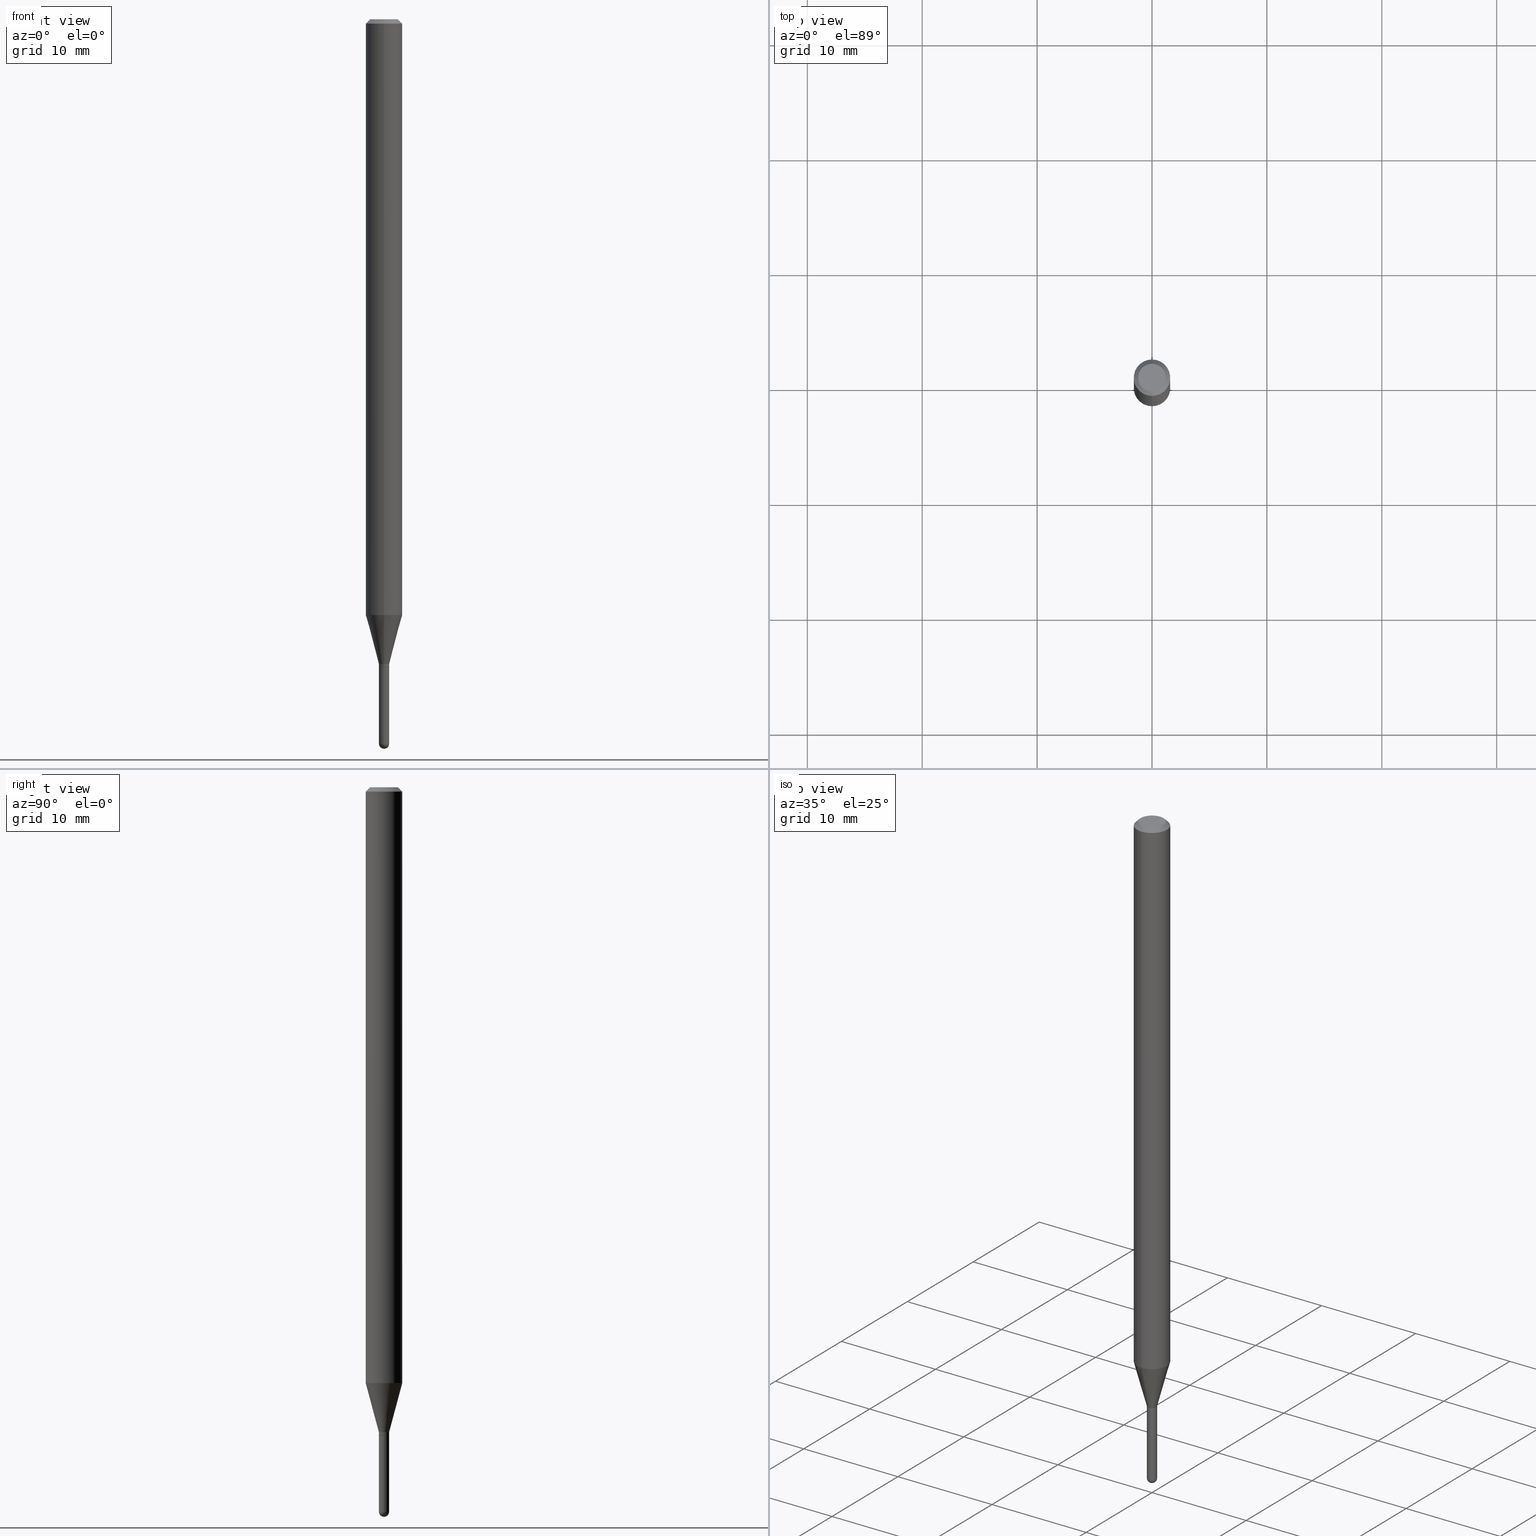
[diagram: canonical four-view strip — front | top / right | iso, engineering-drawing reading convention]
A machine part, canonical four-view strip (front | top / right | iso — engineering-drawing reading convention). The complete STEP part file that produces these views, byte-faithful:
ISO-10303-21;
HEADER;
FILE_DESCRIPTION (( 'STEP AP203' ),
    '1' );
FILE_NAME ('00985.STEP',
    '2024-03-07T19:28:57',
    ( '' ),
    ( '' ),
    'SwSTEP 2.0',
    'SolidWorks 2023',
    '' );
FILE_SCHEMA (( 'CONFIG_CONTROL_DESIGN' ));
ENDSEC;

DATA;
#1 = ORIENTED_EDGE ( 'NONE', *, *, #281, .F. ) ;
#2 = APPROVAL_STATUS ( 'not_yet_approved' ) ;
#3 = AXIS2_PLACEMENT_3D ( 'NONE', #304, #434, #427 ) ;
#4 = VECTOR ( 'NONE', #88, 39.37007874015748143 ) ;
#5 = PRODUCT_DEFINITION ( 'UNKNOWN', '', #166, #21 ) ;
#6 = APPROVAL_DATE_TIME ( #408, #203 ) ;
#7 = FACE_OUTER_BOUND ( 'NONE', #449, .T. ) ;
#8 = FACE_OUTER_BOUND ( 'NONE', #151, .T. ) ;
#9 = DIRECTION ( 'NONE',  ( -2.445449650691490945E-29, 3.491508770600309378E-15, 1.000000000000000000 ) ) ;
#10 = CC_DESIGN_PERSON_AND_ORGANIZATION_ASSIGNMENT ( #354, #500, ( #438 ) ) ;
#11 = AXIS2_PLACEMENT_3D ( 'NONE', #375, #376, #377 ) ;
#12 = APPROVAL_PERSON_ORGANIZATION ( #407, #203, #163 ) ;
#13 = DIRECTION ( 'NONE',  ( -2.445449650691490945E-29, 3.491508770600309378E-15, 1.000000000000000000 ) ) ;
#14 = LINE ( 'NONE', #418, #345 ) ;
#15 = EDGE_LOOP ( 'NONE', ( #99, #358, #188, #235 ) ) ;
#16 = EDGE_CURVE ( 'NONE', #161, #184, #498, .T. ) ;
#17 = DIRECTION ( 'NONE',  ( -2.445449650691490945E-29, 3.491508770600309378E-15, 1.000000000000000000 ) ) ;
#18 = FACE_OUTER_BOUND ( 'NONE', #15, .T. ) ;
#19 = CONICAL_SURFACE ( 'NONE', #337, 0.06250000000000000000, 0.7853981633974483900 ) ;
#20 = CIRCLE ( 'NONE', #238, 0.06250000000000000000 ) ;
#21 = DESIGN_CONTEXT ( 'detailed design', #168, 'design' ) ;
#22 = DIRECTION ( 'NONE',  ( -2.445449650691490945E-29, 3.491508770600309378E-15, 1.000000000000000000 ) ) ;
#23 = DIRECTION ( 'NONE',  ( 2.445449650691490665E-29, -3.491508770600308983E-15, -1.000000000000000000 ) ) ;
#24 = DIRECTION ( 'NONE',  ( -6.982962677686265922E-15, -1.000000000000000000, 3.491508770600309378E-15 ) ) ;
#25 = ORIENTED_EDGE ( 'NONE', *, *, #281, .T. ) ;
#26 = DIRECTION ( 'NONE',  ( 1.000000000000000000, -6.982962677686303787E-15, 0.000000000000000000 ) ) ;
#27 = CYLINDRICAL_SURFACE ( 'NONE', #93, 0.01749999999999965125 ) ;
#28 = VERTEX_POINT ( 'NONE', #309 ) ;
#29 = ORIENTED_EDGE ( 'NONE', *, *, #136, .F. ) ;
#30 = CC_DESIGN_SECURITY_CLASSIFICATION ( #173, ( #166 ) ) ;
#31 = DIRECTION ( 'NONE',  ( -6.982962677686265922E-15, -1.000000000000000000, 3.491508770600308983E-15 ) ) ;
#32 = APPROVAL_DATE_TIME ( #270, #67 ) ;
#33 = DIRECTION ( 'NONE',  ( -6.982962677686265922E-15, -1.000000000000000000, 0.000000000000000000 ) ) ;
#34 =( CONVERSION_BASED_UNIT ( 'INCH', #340 ) LENGTH_UNIT ( ) NAMED_UNIT ( #369 ) );
#35 = ORIENTED_EDGE ( 'NONE', *, *, #512, .T. ) ;
#36 = ADVANCED_FACE ( 'NONE', ( #431 ), #388, .F. ) ;
#37 = APPROVAL_STATUS ( 'not_yet_approved' ) ;
#38 = DIRECTION ( 'NONE',  ( -2.445449650691490945E-29, 3.491508770600309378E-15, 1.000000000000000000 ) ) ;
#39 = DIRECTION ( 'NONE',  ( -2.445449650691490945E-29, 3.491508770600309378E-15, 1.000000000000000000 ) ) ;
#40 = DIRECTION ( 'NONE',  ( -2.445449650691490945E-29, 3.491508770600309378E-15, 1.000000000000000000 ) ) ;
#41 = AXIS2_PLACEMENT_3D ( 'NONE', #275, #278, #26 ) ;
#42 = AXIS2_PLACEMENT_3D ( 'NONE', #348, #489, #148 ) ;
#43 = CONICAL_SURFACE ( 'NONE', #103, 0.01700000000000000122, 0.7853981633974739252 ) ;
#44 = ADVANCED_BREP_SHAPE_REPRESENTATION ( '00985', ( #327, #484, #81 ), #126 ) ;
#45 = ORIENTED_EDGE ( 'NONE', *, *, #294, .F. ) ;
#46 = PRODUCT_DEFINITION_SHAPE ( 'NONE', 'NONE',  #5 ) ;
#47 = FACE_OUTER_BOUND ( 'NONE', #453, .T. ) ;
#48 = DIRECTION ( 'NONE',  ( -6.982962677686265922E-15, -1.000000000000000000, 3.483106191921935554E-15 ) ) ;
#49 = CARTESIAN_POINT ( 'NONE',  ( 6.070876311354603530E-29, -8.667602423678111529E-15, -2.482500000000000817 ) ) ;
#50 = ADVANCED_FACE ( 'NONE', ( #456 ), #141, .F. ) ;
#51 = DIRECTION ( 'NONE',  ( -6.982962677686265133E-15, -1.000000000000000000, 0.000000000000000000 ) ) ;
#52 = DIRECTION ( 'NONE',  ( -6.982962677686266711E-15, -1.000000000000000000, 3.491508770600309772E-15 ) ) ;
#53 = VECTOR ( 'NONE', #425, 39.37007874015748143 ) ;
#54 = LOCAL_TIME ( 14, 28, 57.00000000000000000, #398 ) ;
#55 = CARTESIAN_POINT ( 'NONE',  ( 0.01750000000000000167, -1.222018468595096625E-16, 8.533309357642889039E-31 ) ) ;
#56 = ADVANCED_FACE ( 'NONE', ( #18 ), #177, .T. ) ;
#57 = DIRECTION ( 'NONE',  ( 1.000000000000000000, -6.982962677686248567E-15, 0.000000000000000000 ) ) ;
#58 = ORIENTED_EDGE ( 'NONE', *, *, #455, .T. ) ;
#59 = ORIENTED_EDGE ( 'NONE', *, *, #385, .T. ) ;
#60 = DIRECTION ( 'NONE',  ( -2.445449650691490945E-29, 3.491508770600309378E-15, 1.000000000000000000 ) ) ;
#61 = CIRCLE ( 'NONE', #180, 0.01700000000000000122 ) ;
#62 = ORIENTED_EDGE ( 'NONE', *, *, #280, .F. ) ;
#63 = CC_DESIGN_APPROVAL ( #67, ( #173 ) ) ;
#64 = CARTESIAN_POINT ( 'NONE',  ( 3.668174476037238870E-31, -5.237263155900467617E-17, -0.01500000000000000812 ) ) ;
#65 = FACE_OUTER_BOUND ( 'NONE', #197, .T. ) ;
#66 = CARTESIAN_POINT ( 'NONE',  ( 2.166427900926208245E-46, -3.093133409971536781E-32, -8.859016583365825955E-18 ) ) ;
#67 = APPROVAL ( #37, 'UNSPECIFIED' ) ;
#68 = DIRECTION ( 'NONE',  ( 2.445449650691490945E-29, -3.491508770600309378E-15, -1.000000000000000000 ) ) ;
#69 = FACE_OUTER_BOUND ( 'NONE', #391, .T. ) ;
#70 = VERTEX_POINT ( 'NONE', #264 ) ;
#71 = CARTESIAN_POINT ( 'NONE',  ( 4.993749322560243960E-29, -7.129862417313810105E-15, -2.042057713659399809 ) ) ;
#72 = PERSON_AND_ORGANIZATION ( #402, #146 ) ;
#73 = ORIENTED_EDGE ( 'NONE', *, *, #120, .T. ) ;
#74 = ADVANCED_FACE ( 'NONE', ( #193 ), #19, .T. ) ;
#75 = AXIS2_PLACEMENT_3D ( 'NONE', #210, #195, #251 ) ;
#76 = EDGE_CURVE ( 'NONE', #499, #333, #172, .T. ) ;
#77 = ORIENTED_EDGE ( 'NONE', *, *, #512, .F. ) ;
#78 = CARTESIAN_POINT ( 'NONE',  ( -1.243449787579568760E-16, -0.01750000000000867528, -2.482500000000000817 ) ) ;
#79 = CARTESIAN_POINT ( 'NONE',  ( -3.773273898774340269E-16, -0.04749999999999999362, 1.569876500201488802E-16 ) ) ;
#80 = VERTEX_POINT ( 'NONE', #419 ) ;
#81 = AXIS2_PLACEMENT_3D ( 'NONE', #233, #364, #135 ) ;
#82 = EDGE_CURVE ( 'NONE', #273, #145, #479, .T. ) ;
#83 = COORDINATED_UNIVERSAL_TIME_OFFSET ( 5, 0, .BEHIND. ) ;
#84 = UNCERTAINTY_MEASURE_WITH_UNIT (LENGTH_MEASURE( 1.000000000000000082E-05 ), #34, 'distance_accuracy_value', 'NONE');
#85 = ADVANCED_FACE ( 'NONE', ( #65 ), #469, .T. ) ;
#86 = VECTOR ( 'NONE', #301, 39.37007874015748143 ) ;
#87 = AXIS2_PLACEMENT_3D ( 'NONE', #106, #389, #24 ) ;
#88 = DIRECTION ( 'NONE',  ( -2.445468806185136877E-29, 3.491481338843145188E-15, 1.000000000000000000 ) ) ;
#89 =( LENGTH_UNIT ( ) NAMED_UNIT ( * ) SI_UNIT ( $, .METRE. ) );
#90 = EDGE_LOOP ( 'NONE', ( #96, #58, #478, #308 ) ) ;
#91 = EDGE_CURVE ( 'NONE', #315, #70, #158, .T. ) ;
#92 = LINE ( 'NONE', #215, #159 ) ;
#93 = AXIS2_PLACEMENT_3D ( 'NONE', #497, #40, #361 ) ;
#94 = DIRECTION ( 'NONE',  ( -6.982962677686265922E-15, -1.000000000000000000, 0.000000000000000000 ) ) ;
#95 = DIRECTION ( 'NONE',  ( -2.445468806185136597E-29, 3.491481338843145583E-15, 1.000000000000000000 ) ) ;
#96 = ORIENTED_EDGE ( 'NONE', *, *, #91, .T. ) ;
#97 = ORIENTED_EDGE ( 'NONE', *, *, #248, .F. ) ;
#98 = DIRECTION ( 'NONE',  ( 6.982962677686265922E-15, 1.000000000000000000, 0.000000000000000000 ) ) ;
#99 = ORIENTED_EDGE ( 'NONE', *, *, #167, .F. ) ;
#100 = FACE_OUTER_BOUND ( 'NONE', #117, .T. ) ;
#101 = CLOSED_SHELL ( 'NONE', ( #262, #335, #360, #392, #429, #219, #290, #74, #36, #111, #410, #445 ) ) ;
#102 = DIRECTION ( 'NONE',  ( 1.839019923739599921E-15, 0.2588190451025249028, 0.9659258262890670910 ) ) ;
#103 = AXIS2_PLACEMENT_3D ( 'NONE', #365, #404, #254 ) ;
#104 = CALENDAR_DATE ( 2024, 7, 3 ) ;
#105 = CALENDAR_DATE ( 2024, 7, 3 ) ;
#106 = CARTESIAN_POINT ( 'NONE',  ( 0.000000000000000000, 0.000000000000000000, 0.000000000000000000 ) ) ;
#107 = EDGE_LOOP ( 'NONE', ( #25, #256 ) ) ;
#108 = FACE_OUTER_BOUND ( 'NONE', #90, .T. ) ;
#109 = DIRECTION ( 'NONE',  ( 2.438088387897960049E-29, -3.491481338843145188E-15, -1.000000000000000000 ) ) ;
#110 = CARTESIAN_POINT ( 'NONE',  ( 5.404443728028195647E-29, -7.716234383026684518E-15, -2.210000000000000409 ) ) ;
#111 = ADVANCED_FACE ( 'NONE', ( #100 ), #230, .F. ) ;
#112 = VERTEX_POINT ( 'NONE', #223 ) ;
#113 = CONICAL_SURFACE ( 'NONE', #178, 0.01749999999999965125, 0.2617993877991502405 ) ;
#114 = ORIENTED_EDGE ( 'NONE', *, *, #206, .T. ) ;
#115 = AXIS2_PLACEMENT_3D ( 'NONE', #390, #464, #283 ) ;
#116 = LINE ( 'NONE', #474, #459 ) ;
#117 = EDGE_LOOP ( 'NONE', ( #386, #379 ) ) ;
#118 = COORDINATED_UNIVERSAL_TIME_OFFSET ( 5, 0, .BEHIND. ) ;
#119 = AXIS2_PLACEMENT_3D ( 'NONE', #357, #401, #33 ) ;
#120 = EDGE_CURVE ( 'NONE', #112, #80, #483, .T. ) ;
#121 = LINE ( 'NONE', #55, #4 ) ;
#122 = CC_DESIGN_PERSON_AND_ORGANIZATION_ASSIGNMENT ( #475, #201, ( #5 ) ) ;
#123 = CARTESIAN_POINT ( 'NONE',  ( 2.166427900926208245E-46, -3.093133409971536781E-32, -8.859016583365825955E-18 ) ) ;
#124 = VECTOR ( 'NONE', #152, 39.37007874015748143 ) ;
#125 = ORIENTED_EDGE ( 'NONE', *, *, #409, .F. ) ;
#126 =( GEOMETRIC_REPRESENTATION_CONTEXT ( 3 ) GLOBAL_UNCERTAINTY_ASSIGNED_CONTEXT ( ( #84 ) ) GLOBAL_UNIT_ASSIGNED_CONTEXT ( ( #34, #199, #400 ) ) REPRESENTATION_CONTEXT ( 'NONE', 'WORKASPACE' ) );
#127 = LOCAL_TIME ( 14, 28, 57.00000000000000000, #83 ) ;
#128 = DIRECTION ( 'NONE',  ( 1.000000000000000000, -6.982962677686303787E-15, 0.000000000000000000 ) ) ;
#129 = ORIENTED_EDGE ( 'NONE', *, *, #316, .F. ) ;
#130 = CYLINDRICAL_SURFACE ( 'NONE', #11, 0.01750000000000000167 ) ;
#131 = CIRCLE ( 'NONE', #143, 0.01750000000000001207 ) ;
#132 = LOCAL_TIME ( 14, 28, 57.00000000000000000, #305 ) ;
#133 = ORIENTED_EDGE ( 'NONE', *, *, #82, .T. ) ;
#134 = ORIENTED_EDGE ( 'NONE', *, *, #507, .F. ) ;
#135 = DIRECTION ( 'NONE',  ( 1.000000000000000000, 0.000000000000000000, 0.000000000000000000 ) ) ;
#136 = EDGE_CURVE ( 'NONE', #318, #112, #265, .T. ) ;
#137 = CARTESIAN_POINT ( 'NONE',  ( 0.01750000000000000513, -8.331547344814455920E-15, -2.482500000000000817 ) ) ;
#138 = DIRECTION ( 'NONE',  ( 6.982962677686265922E-15, 1.000000000000000000, 0.000000000000000000 ) ) ;
#139 = ORIENTED_EDGE ( 'NONE', *, *, #485, .T. ) ;
#140 = APPROVAL_ROLE ( '' ) ;
#141 = PLANE ( 'NONE',  #415 ) ;
#142 = PERSON_AND_ORGANIZATION ( #402, #146 ) ;
#143 = AXIS2_PLACEMENT_3D ( 'NONE', #155, #458, #157 ) ;
#144 = CARTESIAN_POINT ( 'NONE',  ( 6.070876311354603530E-29, -8.667602423678111529E-15, -2.482500000000000817 ) ) ;
#145 = VERTEX_POINT ( 'NONE', #137 ) ;
#146 = ORGANIZATION ( 'UNSPECIFIED', 'UNSPECIFIED', '' ) ;
#147 = ORIENTED_EDGE ( 'NONE', *, *, #454, .T. ) ;
#148 = DIRECTION ( 'NONE',  ( 1.000000000000000000, -6.982962677686248567E-15, 0.000000000000000000 ) ) ;
#149 = EDGE_CURVE ( 'NONE', #237, #80, #393, .T. ) ;
#150 = CARTESIAN_POINT ( 'NONE',  ( -1.187103655206122486E-16, -0.01700000000000775197, -2.219999999999999751 ) ) ;
#151 = EDGE_LOOP ( 'NONE', ( #331, #347, #440, #295 ) ) ;
#152 = DIRECTION ( 'NONE',  ( 4.937700262164548042E-15, 0.7071067811865451302, -0.7071067811865499042 ) ) ;
#153 = CYLINDRICAL_SURFACE ( 'NONE', #87, 0.06250000000000000000 ) ;
#154 = ORIENTED_EDGE ( 'NONE', *, *, #181, .T. ) ;
#155 = CARTESIAN_POINT ( 'NONE',  ( 6.069379770348537778E-29, -8.669745555576616428E-15, -2.482499999999999929 ) ) ;
#156 = CARTESIAN_POINT ( 'NONE',  ( 2.842170943040908632E-16, 0.01749999999999193520, -2.210000000000000409 ) ) ;
#157 = DIRECTION ( 'NONE',  ( -7.105427357601000281E-15, -1.000000000000000000, 0.000000000000000000 ) ) ;
#158 = CIRCLE ( 'NONE', #322, 0.06250000000000000000 ) ;
#159 = VECTOR ( 'NONE', #446, 39.37007874015748143 ) ;
#160 = SPHERICAL_SURFACE ( 'NONE', #416, 0.01750000000000001207 ) ;
#161 = VERTEX_POINT ( 'NONE', #313 ) ;
#162 = DIRECTION ( 'NONE',  ( -2.445449650691490665E-29, 3.491508770600308983E-15, 1.000000000000000000 ) ) ;
#163 = APPROVAL_ROLE ( '' ) ;
#164 = AXIS2_PLACEMENT_3D ( 'NONE', #297, #23, #465 ) ;
#165 = CONICAL_SURFACE ( 'NONE', #451, 0.01749999999999965125, 0.2617993877991502405 ) ;
#166 = PRODUCT_DEFINITION_FORMATION_WITH_SPECIFIED_SOURCE ( 'ANY', '', #438, .NOT_KNOWN. ) ;
#167 = EDGE_CURVE ( 'NONE', #353, #273, #131, .T. ) ;
#168 = APPLICATION_CONTEXT ( 'configuration controlled 3d designs of mechanical parts and assemblies' ) ;
#169 = VERTEX_POINT ( 'NONE', #323 ) ;
#170 = DIRECTION ( 'NONE',  ( -6.982962677686265922E-15, -1.000000000000000000, 0.000000000000000000 ) ) ;
#171 = CYLINDRICAL_SURFACE ( 'NONE', #383, 0.01749999999999965125 ) ;
#172 = CIRCLE ( 'NONE', #41, 0.01750000000000000167 ) ;
#173 = SECURITY_CLASSIFICATION ( '', '', #472 ) ;
#174 = ORIENTED_EDGE ( 'NONE', *, *, #136, .T. ) ;
#175 = DIRECTION ( 'NONE',  ( -2.445449650691490665E-29, 3.491508770600308983E-15, 1.000000000000000000 ) ) ;
#176 = ORIENTED_EDGE ( 'NONE', *, *, #221, .T. ) ;
#177 = SPHERICAL_SURFACE ( 'NONE', #344, 0.01750000000000001207 ) ;
#178 = AXIS2_PLACEMENT_3D ( 'NONE', #110, #38, #363 ) ;
#179 = EDGE_CURVE ( 'NONE', #406, #315, #198, .T. ) ;
#180 = AXIS2_PLACEMENT_3D ( 'NONE', #378, #9, #170 ) ;
#181 = EDGE_CURVE ( 'NONE', #333, #273, #253, .T. ) ;
#182 = ORIENTED_EDGE ( 'NONE', *, *, #486, .T. ) ;
#183 = CARTESIAN_POINT ( 'NONE',  ( 1.222018468595639460E-16, 0.01749999999999225092, -2.220000000000000195 ) ) ;
#184 = VERTEX_POINT ( 'NONE', #399 ) ;
#185 = EDGE_LOOP ( 'NONE', ( #62, #154, #133, #147, #350 ) ) ;
#186 = CARTESIAN_POINT ( 'NONE',  ( 5.427675499709764218E-29, -7.749403716347388017E-15, -2.219500000000000028 ) ) ;
#187 = DIRECTION ( 'NONE',  ( 1.000000000000000000, -6.982962677686303787E-15, 0.000000000000000000 ) ) ;
#188 = ORIENTED_EDGE ( 'NONE', *, *, #468, .F. ) ;
#189 = DIRECTION ( 'NONE',  ( -2.445449650691490945E-29, 3.491508770600309378E-15, 1.000000000000000000 ) ) ;
#190 = CARTESIAN_POINT ( 'NONE',  ( 5.428898224535108693E-29, -7.751149470732685959E-15, -2.219999999999999751 ) ) ;
#191 = CONICAL_SURFACE ( 'NONE', #339, 0.01700000000000000122, 0.7853981633974739252 ) ;
#192 = APPROVAL_PERSON_ORGANIZATION ( #142, #67, #194 ) ;
#193 = FACE_OUTER_BOUND ( 'NONE', #448, .T. ) ;
#194 = APPROVAL_ROLE ( '' ) ;
#195 = DIRECTION ( 'NONE',  ( -2.445449650691490945E-29, 3.491508770600309378E-15, 1.000000000000000000 ) ) ;
#196 = DIRECTION ( 'NONE',  ( 1.000000000000000000, -6.982962677686265922E-15, 4.883557194083112340E-29 ) ) ;
#197 = EDGE_LOOP ( 'NONE', ( #302, #218, #490, #205, #395 ) ) ;
#198 = LINE ( 'NONE', #236, #422 ) ;
#199 =( NAMED_UNIT ( * ) PLANE_ANGLE_UNIT ( ) SI_UNIT ( $, .RADIAN. ) );
#200 = DATE_TIME_ROLE ( 'classification_date' ) ;
#201 = PERSON_AND_ORGANIZATION_ROLE ( 'creator' ) ;
#202 = VECTOR ( 'NONE', #162, 39.37007874015748143 ) ;
#203 = APPROVAL ( #2, 'UNSPECIFIED' ) ;
#204 = CARTESIAN_POINT ( 'NONE',  ( 0.000000000000000000, 0.000000000000000000, 0.000000000000000000 ) ) ;
#205 = ORIENTED_EDGE ( 'NONE', *, *, #454, .F. ) ;
#206 = EDGE_CURVE ( 'NONE', #381, #70, #116, .T. ) ;
#207 = DIRECTION ( 'NONE',  ( -2.445449650691490945E-29, 3.491508770600309378E-15, 1.000000000000000000 ) ) ;
#208 = VECTOR ( 'NONE', #226, 39.37007874015748143 ) ;
#209 = CIRCLE ( 'NONE', #411, 0.01750000000000000167 ) ;
#210 = CARTESIAN_POINT ( 'NONE',  ( 5.404443728028195647E-29, -7.716234383026684518E-15, -2.210000000000000409 ) ) ;
#211 = DIRECTION ( 'NONE',  ( -2.445468806185136597E-29, 3.491481338843145583E-15, 1.000000000000000000 ) ) ;
#212 = CARTESIAN_POINT ( 'NONE',  ( 5.427675499709764218E-29, -7.749403716347388017E-15, -2.219500000000000028 ) ) ;
#213 = AXIS2_PLACEMENT_3D ( 'NONE', #349, #196, #138 ) ;
#214 = LOCAL_TIME ( 14, 28, 57.00000000000000000, #303 ) ;
#215 = CARTESIAN_POINT ( 'NONE',  ( 4.440892098500625669E-16, 0.06250000000000000000, -2.182192981625193361E-16 ) ) ;
#216 = CARTESIAN_POINT ( 'NONE',  ( 6.112923744959810298E-29, -8.729774913057118970E-15, -2.500000000000000000 ) ) ;
#217 = CARTESIAN_POINT ( 'NONE',  ( 0.000000000000000000, 0.000000000000000000, 0.000000000000000000 ) ) ;
#218 = ORIENTED_EDGE ( 'NONE', *, *, #280, .T. ) ;
#219 = ADVANCED_FACE ( 'NONE', ( #69 ), #113, .T. ) ;
#220 = DIRECTION ( 'NONE',  ( -1.000000000000000000, 6.982962677686265922E-15, -4.883557194083112901E-29 ) ) ;
#221 = EDGE_CURVE ( 'NONE', #169, #28, #276, .T. ) ;
#222 = VERTEX_POINT ( 'NONE', #396 ) ;
#223 = CARTESIAN_POINT ( 'NONE',  ( -4.364351673553912750E-16, -0.06250000000000005551, -0.01499999999999979128 ) ) ;
#224 = CIRCLE ( 'NONE', #509, 0.04749999999999999362 ) ;
#225 = EDGE_LOOP ( 'NONE', ( #139, #430 ) ) ;
#226 = DIRECTION ( 'NONE',  ( -4.851104656540964275E-15, -0.7071067811865500152, -0.7071067811865450192 ) ) ;
#227 = FACE_OUTER_BOUND ( 'NONE', #263, .T. ) ;
#228 = ORIENTED_EDGE ( 'NONE', *, *, #477, .T. ) ;
#229 = APPROVAL_DATE_TIME ( #268, #435 ) ;
#230 = PLANE ( 'NONE',  #366 ) ;
#231 = ORIENTED_EDGE ( 'NONE', *, *, #455, .F. ) ;
#232 = EDGE_LOOP ( 'NONE', ( #35, #424, #97, #129 ) ) ;
#233 = CARTESIAN_POINT ( 'NONE',  ( 0.000000000000000000, 0.000000000000000000, 0.000000000000000000 ) ) ;
#234 = LINE ( 'NONE', #351, #338 ) ;
#235 = ORIENTED_EDGE ( 'NONE', *, *, #82, .F. ) ;
#236 = CARTESIAN_POINT ( 'NONE',  ( -1.222018468594531603E-16, -0.01750000000000736730, -2.210000000000000409 ) ) ;
#237 = VERTEX_POINT ( 'NONE', #307 ) ;
#238 = AXIS2_PLACEMENT_3D ( 'NONE', #329, #39, #48 ) ;
#239 = DIRECTION ( 'NONE',  ( -6.982962677686265922E-15, -1.000000000000000000, 0.000000000000000000 ) ) ;
#240 = DIRECTION ( 'NONE',  ( -2.445468806185136597E-29, 3.491481338843145583E-15, 1.000000000000000000 ) ) ;
#241 = EDGE_CURVE ( 'NONE', #353, #499, #382, .T. ) ;
#242 = LINE ( 'NONE', #428, #53 ) ;
#243 = ORIENTED_EDGE ( 'NONE', *, *, #206, .F. ) ;
#244 = CIRCLE ( 'NONE', #286, 0.01700000000000000122 ) ;
#245 = ORIENTED_EDGE ( 'NONE', *, *, #316, .T. ) ;
#246 = CALENDAR_DATE ( 2024, 7, 3 ) ;
#247 = CC_DESIGN_APPROVAL ( #203, ( #166 ) ) ;
#248 = EDGE_CURVE ( 'NONE', #406, #381, #488, .T. ) ;
#249 = CALENDAR_DATE ( 2024, 7, 3 ) ;
#250 = CARTESIAN_POINT ( 'NONE',  ( -1.222018468594531603E-16, -0.01750000000000736730, -2.210000000000000409 ) ) ;
#251 = DIRECTION ( 'NONE',  ( -6.982962677686265922E-15, -1.000000000000000000, 0.000000000000000000 ) ) ;
#252 = CC_DESIGN_PERSON_AND_ORGANIZATION_ASSIGNMENT ( #405, #466, ( #166 ) ) ;
#253 = CIRCLE ( 'NONE', #487, 0.01750000000000000167 ) ;
#254 = DIRECTION ( 'NONE',  ( -6.982962677686265922E-15, -1.000000000000000000, 0.000000000000000000 ) ) ;
#255 = FACE_OUTER_BOUND ( 'NONE', #185, .T. ) ;
#256 = ORIENTED_EDGE ( 'NONE', *, *, #507, .T. ) ;
#257 = AXIS2_PLACEMENT_3D ( 'NONE', #457, #269, #187 ) ;
#258 = APPLICATION_CONTEXT ( 'configuration controlled 3d designs of mechanical parts and assemblies' ) ;
#259 = AXIS2_PLACEMENT_3D ( 'NONE', #204, #441, #288 ) ;
#260 = EDGE_CURVE ( 'NONE', #70, #315, #436, .T. ) ;
#261 = CARTESIAN_POINT ( 'NONE',  ( -1.187103655206122486E-16, -0.01700000000000775197, -2.219999999999999751 ) ) ;
#262 = ADVANCED_FACE ( 'NONE', ( #439 ), #27, .T. ) ;
#263 = EDGE_LOOP ( 'NONE', ( #231, #463, #228, #125 ) ) ;
#264 = CARTESIAN_POINT ( 'NONE',  ( 4.440892098501123144E-16, 0.06249999999999285294, -2.042057713659400253 ) ) ;
#265 = LINE ( 'NONE', #491, #208 ) ;
#266 = AXIS2_PLACEMENT_3D ( 'NONE', #212, #13, #51 ) ;
#267 = CARTESIAN_POINT ( 'NONE',  ( 1.207922650792713238E-16, 0.01699999999999225048, -2.219999999999999751 ) ) ;
#268 = DATE_AND_TIME ( #104, #214 ) ;
#269 = DIRECTION ( 'NONE',  ( -2.445468806185136597E-29, 3.491481338843145583E-15, 1.000000000000000000 ) ) ;
#270 = DATE_AND_TIME ( #105, #132 ) ;
#271 = LINE ( 'NONE', #150, #306 ) ;
#272 = PRODUCT_RELATED_PRODUCT_CATEGORY ( 'detail', '', ( #438 ) ) ;
#273 = VERTEX_POINT ( 'NONE', #78 ) ;
#274 = CYLINDRICAL_SURFACE ( 'NONE', #259, 0.06250000000000000000 ) ;
#275 = CARTESIAN_POINT ( 'NONE',  ( 6.070876311354603530E-29, -8.667602423678111529E-15, -2.482500000000000817 ) ) ;
#276 = LINE ( 'NONE', #267, #86 ) ;
#277 = DIRECTION ( 'NONE',  ( 6.982962677686265922E-15, 1.000000000000000000, -3.483106191921935554E-15 ) ) ;
#278 = DIRECTION ( 'NONE',  ( -2.445468806185136597E-29, 3.491481338843145583E-15, 1.000000000000000000 ) ) ;
#279 = ORIENTED_EDGE ( 'NONE', *, *, #372, .F. ) ;
#280 = EDGE_CURVE ( 'NONE', #333, #161, #242, .T. ) ;
#281 = EDGE_CURVE ( 'NONE', #237, #318, #324, .T. ) ;
#282 = DATE_AND_TIME ( #325, #54 ) ;
#283 = DIRECTION ( 'NONE',  ( -6.982962677686265922E-15, -1.000000000000000000, 4.370956789862821150E-15 ) ) ;
#284 = ORIENTED_EDGE ( 'NONE', *, *, #372, .T. ) ;
#285 = CARTESIAN_POINT ( 'NONE',  ( -1.222018468595072220E-16, -0.01749999999999965125, 6.110140348550419828E-17 ) ) ;
#286 = AXIS2_PLACEMENT_3D ( 'NONE', #495, #189, #239 ) ;
#287 = CC_DESIGN_APPROVAL ( #435, ( #5 ) ) ;
#288 = DIRECTION ( 'NONE',  ( -6.982962677686265922E-15, -1.000000000000000000, 3.491508770600309378E-15 ) ) ;
#289 = CIRCLE ( 'NONE', #266, 0.01749999999999965472 ) ;
#290 = ADVANCED_FACE ( 'NONE', ( #227 ), #153, .T. ) ;
#291 = ORIENTED_EDGE ( 'NONE', *, *, #373, .F. ) ;
#292 = CARTESIAN_POINT ( 'NONE',  ( 5.428940749731002707E-29, -7.751088572231783501E-15, -2.220000000000000195 ) ) ;
#293 = DIRECTION ( 'NONE',  ( -6.982962677686265922E-15, -1.000000000000000000, 0.000000000000000000 ) ) ;
#294 = EDGE_CURVE ( 'NONE', #482, #222, #271, .T. ) ;
#295 = ORIENTED_EDGE ( 'NONE', *, *, #76, .F. ) ;
#296 = CARTESIAN_POINT ( 'NONE',  ( 5.428898224535108693E-29, -7.751149470732685959E-15, -2.219999999999999751 ) ) ;
#297 = CARTESIAN_POINT ( 'NONE',  ( 3.316907271900976096E-16, 0.04749999999999999362, -1.702761748951975868E-16 ) ) ;
#298 = ORIENTED_EDGE ( 'NONE', *, *, #341, .F. ) ;
#299 = APPLICATION_PROTOCOL_DEFINITION ( 'international standard', 'config_control_design', 1994, #258 ) ;
#300 = DIRECTION ( 'NONE',  ( -1.000000000000000000, 6.982962677686265922E-15, -4.876176775795935793E-29 ) ) ;
#301 = DIRECTION ( 'NONE',  ( 5.024295867788190974E-15, 0.7071067811865681119, 0.7071067811865270336 ) ) ;
#302 = ORIENTED_EDGE ( 'NONE', *, *, #76, .T. ) ;
#303 = COORDINATED_UNIVERSAL_TIME_OFFSET ( 5, 0, .BEHIND. ) ;
#304 = CARTESIAN_POINT ( 'NONE',  ( 0.000000000000000000, 0.000000000000000000, 0.000000000000000000 ) ) ;
#305 = COORDINATED_UNIVERSAL_TIME_OFFSET ( 5, 0, .BEHIND. ) ;
#306 = VECTOR ( 'NONE', #314, 39.37007874015748143 ) ;
#307 = CARTESIAN_POINT ( 'NONE',  ( 3.840629472727447874E-16, 0.04749999999999999362, -1.747056831868805136E-16 ) ) ;
#308 = ORIENTED_EDGE ( 'NONE', *, *, #477, .F. ) ;
#309 = CARTESIAN_POINT ( 'NONE',  ( 1.243449787580688943E-16, 0.01749999999999184500, -2.219500000000000028 ) ) ;
#310 = CARTESIAN_POINT ( 'NONE',  ( -4.364351673553418233E-16, -0.06250000000000713318, -2.042057713659399809 ) ) ;
#311 = ORIENTED_EDGE ( 'NONE', *, *, #248, .T. ) ;
#312 = FACE_OUTER_BOUND ( 'NONE', #493, .T. ) ;
#313 = CARTESIAN_POINT ( 'NONE',  ( -0.01750000000000000167, -8.085000519196929478E-15, -2.220000000000000195 ) ) ;
#314 = DIRECTION ( 'NONE',  ( -4.937700262164674260E-15, -0.7071067811865632269, 0.7071067811865319186 ) ) ;
#315 = VERTEX_POINT ( 'NONE', #310 ) ;
#316 = EDGE_CURVE ( 'NONE', #222, #406, #467, .T. ) ;
#317 = ADVANCED_FACE ( 'NONE', ( #8 ), #160, .T. ) ;
#318 = VERTEX_POINT ( 'NONE', #79 ) ;
#319 = CC_DESIGN_DATE_AND_TIME_ASSIGNMENT ( #282, #200, ( #173 ) ) ;
#320 = DIRECTION ( 'NONE',  ( -2.445449650691490945E-29, 3.491508770600309378E-15, 1.000000000000000000 ) ) ;
#321 = SHAPE_DEFINITION_REPRESENTATION ( #46, #44 ) ;
#322 = AXIS2_PLACEMENT_3D ( 'NONE', #71, #60, #496 ) ;
#323 = CARTESIAN_POINT ( 'NONE',  ( 1.225686219186703432E-16, 0.01699999999999225048, -2.219999999999999751 ) ) ;
#324 = CIRCLE ( 'NONE', #423, 0.04749999999999999362 ) ;
#325 = CALENDAR_DATE ( 2024, 7, 3 ) ;
#326 = DIRECTION ( 'NONE',  ( -1.000000000000000000, 6.982962677686265922E-15, -4.883557194083112901E-29 ) ) ;
#327 = MANIFOLD_SOLID_BREP ( 'Body-Move/Copy2[1]', #450 ) ;
#328 = EDGE_LOOP ( 'NONE', ( #291, #284, #245, #298 ) ) ;
#329 = CARTESIAN_POINT ( 'NONE',  ( 3.668174476037238870E-31, -5.237263155900467617E-17, -0.01500000000000000812 ) ) ;
#330 = DIRECTION ( 'NONE',  ( 6.982962677686265922E-15, 1.000000000000000000, 0.000000000000000000 ) ) ;
#331 = ORIENTED_EDGE ( 'NONE', *, *, #241, .F. ) ;
#332 = AXIS2_PLACEMENT_3D ( 'NONE', #49, #211, #128 ) ;
#333 = VERTEX_POINT ( 'NONE', #444 ) ;
#334 = PERSON_AND_ORGANIZATION ( #402, #146 ) ;
#335 = ADVANCED_FACE ( 'NONE', ( #47 ), #191, .T. ) ;
#336 = CARTESIAN_POINT ( 'NONE',  ( 1.222018468595703801E-16, 0.01749999999999134193, -2.482500000000000817 ) ) ;
#337 = AXIS2_PLACEMENT_3D ( 'NONE', #380, #68, #346 ) ;
#338 = VECTOR ( 'NONE', #355, 39.37007874015748143 ) ;
#339 = AXIS2_PLACEMENT_3D ( 'NONE', #296, #207, #94 ) ;
#340 = LENGTH_MEASURE_WITH_UNIT ( LENGTH_MEASURE( 0.02539999999999999897 ), #89 );
#341 = EDGE_CURVE ( 'NONE', #381, #406, #473, .T. ) ;
#342 = CC_DESIGN_PERSON_AND_ORGANIZATION_ASSIGNMENT ( #334, #508, ( #166 ) ) ;
#343 = CARTESIAN_POINT ( 'NONE',  ( 5.404443728028195647E-29, -7.716234383026684518E-15, -2.210000000000000409 ) ) ;
#344 = AXIS2_PLACEMENT_3D ( 'NONE', #384, #220, #98 ) ;
#345 = VECTOR ( 'NONE', #175, 39.37007874015748143 ) ;
#346 = DIRECTION ( 'NONE',  ( 6.982962677686265922E-15, 1.000000000000000000, -3.483106191921935554E-15 ) ) ;
#347 = ORIENTED_EDGE ( 'NONE', *, *, #167, .T. ) ;
#348 = CARTESIAN_POINT ( 'NONE',  ( 5.428940749731002707E-29, -7.751088572231783501E-15, -2.220000000000000195 ) ) ;
#349 = CARTESIAN_POINT ( 'NONE',  ( 6.069379770348537778E-29, -8.669745555576616428E-15, -2.482499999999999929 ) ) ;
#350 = ORIENTED_EDGE ( 'NONE', *, *, #16, .F. ) ;
#351 = CARTESIAN_POINT ( 'NONE',  ( 1.243449787580150299E-16, 0.01749999999999965125, -6.110140348550419828E-17 ) ) ;
#352 = ORIENTED_EDGE ( 'NONE', *, *, #341, .T. ) ;
#353 = VERTEX_POINT ( 'NONE', #216 ) ;
#354 = PERSON_AND_ORGANIZATION ( #402, #146 ) ;
#355 = DIRECTION ( 'NONE',  ( -2.445449650691490665E-29, 3.491508770600308983E-15, 1.000000000000000000 ) ) ;
#356 = CARTESIAN_POINT ( 'NONE',  ( 3.668174476037238870E-31, -5.237263155900467617E-17, -0.01500000000000000812 ) ) ;
#357 = CARTESIAN_POINT ( 'NONE',  ( 5.404443728028195647E-29, -7.716234383026684518E-15, -2.210000000000000409 ) ) ;
#358 = ORIENTED_EDGE ( 'NONE', *, *, #241, .T. ) ;
#359 = CARTESIAN_POINT ( 'NONE',  ( 4.364351673553919652E-16, 0.06249999999999995143, -0.01500000000000022669 ) ) ;
#360 = ADVANCED_FACE ( 'NONE', ( #312 ), #462, .T. ) ;
#361 = DIRECTION ( 'NONE',  ( -6.982962677686265922E-15, -1.000000000000000000, 3.491508770600309378E-15 ) ) ;
#362 = PERSON_AND_ORGANIZATION_ROLE ( 'classification_officer' ) ;
#363 = DIRECTION ( 'NONE',  ( -6.982962677686265922E-15, -1.000000000000000000, 0.000000000000000000 ) ) ;
#364 = DIRECTION ( 'NONE',  ( 0.000000000000000000, 0.000000000000000000, 1.000000000000000000 ) ) ;
#365 = CARTESIAN_POINT ( 'NONE',  ( 5.428898224535108693E-29, -7.751149470732685959E-15, -2.219999999999999751 ) ) ;
#366 = AXIS2_PLACEMENT_3D ( 'NONE', #190, #504, #31 ) ;
#367 = ORIENTED_EDGE ( 'NONE', *, *, #91, .F. ) ;
#368 = CC_DESIGN_PERSON_AND_ORGANIZATION_ASSIGNMENT ( #72, #362, ( #173 ) ) ;
#369 = DIMENSIONAL_EXPONENTS ( 1.000000000000000000, 0.000000000000000000, 0.000000000000000000, 0.000000000000000000, 0.000000000000000000, 0.000000000000000000, 0.000000000000000000 ) ;
#370 = AXIS2_PLACEMENT_3D ( 'NONE', #356, #22, #502 ) ;
#371 = CIRCLE ( 'NONE', #332, 0.01750000000000000167 ) ;
#372 = EDGE_CURVE ( 'NONE', #28, #222, #447, .T. ) ;
#373 = EDGE_CURVE ( 'NONE', #28, #381, #234, .T. ) ;
#374 = CC_DESIGN_DATE_AND_TIME_ASSIGNMENT ( #511, #443, ( #5 ) ) ;
#375 = CARTESIAN_POINT ( 'NONE',  ( 0.000000000000000000, 0.000000000000000000, 0.000000000000000000 ) ) ;
#376 = DIRECTION ( 'NONE',  ( -2.445468806185136597E-29, 3.491481338843145583E-15, 1.000000000000000000 ) ) ;
#377 = DIRECTION ( 'NONE',  ( 1.000000000000000000, -6.982962677686265922E-15, 4.876176775795936353E-29 ) ) ;
#378 = CARTESIAN_POINT ( 'NONE',  ( 5.428898224535108693E-29, -7.751149470732685959E-15, -2.219999999999999751 ) ) ;
#379 = ORIENTED_EDGE ( 'NONE', *, *, #486, .F. ) ;
#380 = CARTESIAN_POINT ( 'NONE',  ( 3.668174476037238870E-31, -5.237263155900467617E-17, -0.01500000000000000812 ) ) ;
#381 = VERTEX_POINT ( 'NONE', #156 ) ;
#382 = CIRCLE ( 'NONE', #213, 0.01750000000000001207 ) ;
#383 = AXIS2_PLACEMENT_3D ( 'NONE', #217, #17, #412 ) ;
#384 = CARTESIAN_POINT ( 'NONE',  ( 6.069379770348537778E-29, -8.669745555576616428E-15, -2.482499999999999929 ) ) ;
#385 = EDGE_CURVE ( 'NONE', #482, #169, #244, .T. ) ;
#386 = ORIENTED_EDGE ( 'NONE', *, *, #385, .F. ) ;
#387 = APPLICATION_PROTOCOL_DEFINITION ( 'international standard', 'config_control_design', 1994, #168 ) ;
#388 = PLANE ( 'NONE',  #164 ) ;
#389 = DIRECTION ( 'NONE',  ( -2.445449650691490945E-29, 3.491508770600309378E-15, 1.000000000000000000 ) ) ;
#390 = CARTESIAN_POINT ( 'NONE',  ( 4.993749322560243960E-29, -7.129862417313810105E-15, -2.042057713659399809 ) ) ;
#391 = EDGE_LOOP ( 'NONE', ( #243, #352, #420, #403 ) ) ;
#392 = ADVANCED_FACE ( 'NONE', ( #108 ), #274, .T. ) ;
#393 = LINE ( 'NONE', #359, #124 ) ;
#394 = AXIS2_PLACEMENT_3D ( 'NONE', #186, #320, #433 ) ;
#395 = ORIENTED_EDGE ( 'NONE', *, *, #468, .T. ) ;
#396 = CARTESIAN_POINT ( 'NONE',  ( -1.222018468594533576E-16, -0.01750000000000746098, -2.219500000000000028 ) ) ;
#397 = ORIENTED_EDGE ( 'NONE', *, *, #409, .T. ) ;
#398 = COORDINATED_UNIVERSAL_TIME_OFFSET ( 5, 0, .BEHIND. ) ;
#399 = CARTESIAN_POINT ( 'NONE',  ( 0.01750000000000000167, -7.873290419091293484E-15, -2.220000000000000195 ) ) ;
#400 =( NAMED_UNIT ( * ) SI_UNIT ( $, .STERADIAN. ) SOLID_ANGLE_UNIT ( ) );
#401 = DIRECTION ( 'NONE',  ( -2.445449650691490945E-29, 3.491508770600309378E-15, 1.000000000000000000 ) ) ;
#402 = PERSON ( 'UNSPECIFIED', 'UNSPECIFIED', 'UNSPECIFIED', ('UNSPECIFIED'), ('UNSPECIFIED'), ('UNSPECIFIED') ) ;
#403 = ORIENTED_EDGE ( 'NONE', *, *, #260, .F. ) ;
#404 = DIRECTION ( 'NONE',  ( -2.445449650691490945E-29, 3.491508770600309378E-15, 1.000000000000000000 ) ) ;
#405 = PERSON_AND_ORGANIZATION ( #402, #146 ) ;
#406 = VERTEX_POINT ( 'NONE', #250 ) ;
#407 = PERSON_AND_ORGANIZATION ( #402, #146 ) ;
#408 = DATE_AND_TIME ( #249, #127 ) ;
#409 = EDGE_CURVE ( 'NONE', #80, #112, #20, .T. ) ;
#410 = ADVANCED_FACE ( 'NONE', ( #7 ), #43, .T. ) ;
#411 = AXIS2_PLACEMENT_3D ( 'NONE', #292, #95, #57 ) ;
#412 = DIRECTION ( 'NONE',  ( -6.982962677686265922E-15, -1.000000000000000000, 3.491508770600309378E-15 ) ) ;
#413 = DIRECTION ( 'NONE',  ( -2.445449650691490945E-29, 3.491508770600309378E-15, 1.000000000000000000 ) ) ;
#414 = DIRECTION ( 'NONE',  ( -2.445449650691490945E-29, 3.491508770600309378E-15, 1.000000000000000000 ) ) ;
#415 = AXIS2_PLACEMENT_3D ( 'NONE', #183, #109, #300 ) ;
#416 = AXIS2_PLACEMENT_3D ( 'NONE', #510, #326, #330 ) ;
#417 = FACE_OUTER_BOUND ( 'NONE', #476, .T. ) ;
#418 = CARTESIAN_POINT ( 'NONE',  ( -4.364351673553916201E-16, -0.06250000000000000000, 2.182192981625193361E-16 ) ) ;
#419 = CARTESIAN_POINT ( 'NONE',  ( 4.440892098501129061E-16, 0.06249999999999995837, -0.01500000000000022669 ) ) ;
#420 = ORIENTED_EDGE ( 'NONE', *, *, #179, .T. ) ;
#421 = MECHANICAL_CONTEXT ( 'NONE', #258, 'mechanical' ) ;
#422 = VECTOR ( 'NONE', #506, 39.37007874015748143 ) ;
#423 = AXIS2_PLACEMENT_3D ( 'NONE', #66, #505, #503 ) ;
#424 = ORIENTED_EDGE ( 'NONE', *, *, #373, .T. ) ;
#425 = DIRECTION ( 'NONE',  ( -2.445468806185136877E-29, 3.491481338843145188E-15, 1.000000000000000000 ) ) ;
#426 = ORIENTED_EDGE ( 'NONE', *, *, #179, .F. ) ;
#427 = DIRECTION ( 'NONE',  ( 1.000000000000000000, -6.982962677686265922E-15, 4.876176775795936353E-29 ) ) ;
#428 = CARTESIAN_POINT ( 'NONE',  ( -0.01750000000000000167, 1.243449787580175444E-16, -8.608136407946085539E-31 ) ) ;
#429 = ADVANCED_FACE ( 'NONE', ( #417 ), #165, .T. ) ;
#430 = ORIENTED_EDGE ( 'NONE', *, *, #16, .T. ) ;
#431 = FACE_OUTER_BOUND ( 'NONE', #107, .T. ) ;
#432 = ORIENTED_EDGE ( 'NONE', *, *, #221, .F. ) ;
#433 = DIRECTION ( 'NONE',  ( -6.982962677686265133E-15, -1.000000000000000000, 0.000000000000000000 ) ) ;
#434 = DIRECTION ( 'NONE',  ( -2.445468806185136597E-29, 3.491481338843145583E-15, 1.000000000000000000 ) ) ;
#435 = APPROVAL ( #494, 'UNSPECIFIED' ) ;
#436 = CIRCLE ( 'NONE', #115, 0.06250000000000000000 ) ;
#437 = LOCAL_TIME ( 14, 28, 57.00000000000000000, #118 ) ;
#438 = PRODUCT ( '00985', '00985', '', ( #421 ) ) ;
#439 = FACE_OUTER_BOUND ( 'NONE', #232, .T. ) ;
#440 = ORIENTED_EDGE ( 'NONE', *, *, #181, .F. ) ;
#441 = DIRECTION ( 'NONE',  ( -2.445449650691490945E-29, 3.491508770600309378E-15, 1.000000000000000000 ) ) ;
#442 = APPROVAL_PERSON_ORGANIZATION ( #461, #435, #140 ) ;
#443 = DATE_TIME_ROLE ( 'creation_date' ) ;
#444 = CARTESIAN_POINT ( 'NONE',  ( -0.01750000000000000513, -8.085000519196929478E-15, -2.482500000000000817 ) ) ;
#445 = ADVANCED_FACE ( 'NONE', ( #452 ), #171, .T. ) ;
#446 = DIRECTION ( 'NONE',  ( -2.445449650691490665E-29, 3.491508770600308983E-15, 1.000000000000000000 ) ) ;
#447 = CIRCLE ( 'NONE', #394, 0.01749999999999965472 ) ;
#448 = EDGE_LOOP ( 'NONE', ( #29, #1, #480, #397 ) ) ;
#449 = EDGE_LOOP ( 'NONE', ( #432, #182, #460, #279 ) ) ;
#450 = CLOSED_SHELL ( 'NONE', ( #85, #317, #50, #56, #481 ) ) ;
#451 = AXIS2_PLACEMENT_3D ( 'NONE', #343, #414, #293 ) ;
#452 = FACE_OUTER_BOUND ( 'NONE', #328, .T. ) ;
#453 = EDGE_LOOP ( 'NONE', ( #59, #176, #77, #45 ) ) ;
#454 = EDGE_CURVE ( 'NONE', #145, #184, #121, .T. ) ;
#455 = EDGE_CURVE ( 'NONE', #70, #80, #92, .T. ) ;
#456 = FACE_OUTER_BOUND ( 'NONE', #225, .T. ) ;
#457 = CARTESIAN_POINT ( 'NONE',  ( 6.070876311354603530E-29, -8.667602423678111529E-15, -2.482500000000000817 ) ) ;
#458 = DIRECTION ( 'NONE',  ( -1.000000000000000000, 7.105427357601001070E-15, -4.926315508542082329E-29 ) ) ;
#459 = VECTOR ( 'NONE', #102, 39.37007874015748143 ) ;
#460 = ORIENTED_EDGE ( 'NONE', *, *, #294, .T. ) ;
#461 = PERSON_AND_ORGANIZATION ( #402, #146 ) ;
#462 = CONICAL_SURFACE ( 'NONE', #501, 0.06250000000000000000, 0.7853981633974483900 ) ;
#463 = ORIENTED_EDGE ( 'NONE', *, *, #260, .T. ) ;
#464 = DIRECTION ( 'NONE',  ( -2.445449650691490945E-29, 3.491508770600309378E-15, 1.000000000000000000 ) ) ;
#465 = DIRECTION ( 'NONE',  ( 6.982962677686265922E-15, 1.000000000000000000, -3.491508770600308983E-15 ) ) ;
#466 = PERSON_AND_ORGANIZATION_ROLE ( 'design_supplier' ) ;
#467 = LINE ( 'NONE', #285, #202 ) ;
#468 = EDGE_CURVE ( 'NONE', #145, #499, #371, .T. ) ;
#469 = CYLINDRICAL_SURFACE ( 'NONE', #3, 0.01750000000000000167 ) ;
#470 = ORIENTED_EDGE ( 'NONE', *, *, #149, .F. ) ;
#471 = DIRECTION ( 'NONE',  ( 2.445449650691490945E-29, -3.491508770600309378E-15, -1.000000000000000000 ) ) ;
#472 = SECURITY_CLASSIFICATION_LEVEL ( 'unclassified' ) ;
#473 = CIRCLE ( 'NONE', #75, 0.01749999999999965125 ) ;
#474 = CARTESIAN_POINT ( 'NONE',  ( 1.243449787580690915E-16, 0.01749999999999193520, -2.210000000000000409 ) ) ;
#475 = PERSON_AND_ORGANIZATION ( #402, #146 ) ;
#476 = EDGE_LOOP ( 'NONE', ( #311, #114, #367, #426 ) ) ;
#477 = EDGE_CURVE ( 'NONE', #315, #112, #14, .T. ) ;
#478 = ORIENTED_EDGE ( 'NONE', *, *, #120, .F. ) ;
#479 = CIRCLE ( 'NONE', #257, 0.01750000000000000167 ) ;
#480 = ORIENTED_EDGE ( 'NONE', *, *, #149, .T. ) ;
#481 = ADVANCED_FACE ( 'NONE', ( #255 ), #130, .T. ) ;
#482 = VERTEX_POINT ( 'NONE', #261 ) ;
#483 = CIRCLE ( 'NONE', #370, 0.06250000000000000000 ) ;
#484 = MANIFOLD_SOLID_BREP ( 'Body-Move/Copy2[2]', #101 ) ;
#485 = EDGE_CURVE ( 'NONE', #184, #161, #209, .T. ) ;
#486 = EDGE_CURVE ( 'NONE', #169, #482, #61, .T. ) ;
#487 = AXIS2_PLACEMENT_3D ( 'NONE', #144, #240, #492 ) ;
#488 = CIRCLE ( 'NONE', #119, 0.01749999999999965125 ) ;
#489 = DIRECTION ( 'NONE',  ( -2.445468806185136597E-29, 3.491481338843145583E-15, 1.000000000000000000 ) ) ;
#490 = ORIENTED_EDGE ( 'NONE', *, *, #485, .F. ) ;
#491 = CARTESIAN_POINT ( 'NONE',  ( -4.287811248607203282E-16, -0.06250000000000005551, -0.01499999999999979128 ) ) ;
#492 = DIRECTION ( 'NONE',  ( 1.000000000000000000, -6.982962677686303787E-15, 0.000000000000000000 ) ) ;
#493 = EDGE_LOOP ( 'NONE', ( #134, #174, #73, #470 ) ) ;
#494 = APPROVAL_STATUS ( 'not_yet_approved' ) ;
#495 = CARTESIAN_POINT ( 'NONE',  ( 5.428898224535108693E-29, -7.751149470732685959E-15, -2.219999999999999751 ) ) ;
#496 = DIRECTION ( 'NONE',  ( -6.982962677686265922E-15, -1.000000000000000000, 4.370956789862821150E-15 ) ) ;
#497 = CARTESIAN_POINT ( 'NONE',  ( 0.000000000000000000, 0.000000000000000000, 0.000000000000000000 ) ) ;
#498 = CIRCLE ( 'NONE', #42, 0.01750000000000000167 ) ;
#499 = VERTEX_POINT ( 'NONE', #336 ) ;
#500 = PERSON_AND_ORGANIZATION_ROLE ( 'design_owner' ) ;
#501 = AXIS2_PLACEMENT_3D ( 'NONE', #64, #471, #277 ) ;
#502 = DIRECTION ( 'NONE',  ( -6.982962677686265922E-15, -1.000000000000000000, 3.483106191921935554E-15 ) ) ;
#503 = DIRECTION ( 'NONE',  ( -6.982962677686266711E-15, -1.000000000000000000, 3.491508770600309772E-15 ) ) ;
#504 = DIRECTION ( 'NONE',  ( -2.445449650691490665E-29, 3.491508770600308983E-15, 1.000000000000000000 ) ) ;
#505 = DIRECTION ( 'NONE',  ( -2.445449650691490945E-29, 3.491508770600309378E-15, 1.000000000000000000 ) ) ;
#506 = DIRECTION ( 'NONE',  ( -1.807323732225329745E-15, -0.2588190451025181305, 0.9659258262890689783 ) ) ;
#507 = EDGE_CURVE ( 'NONE', #318, #237, #224, .T. ) ;
#508 = PERSON_AND_ORGANIZATION_ROLE ( 'creator' ) ;
#509 = AXIS2_PLACEMENT_3D ( 'NONE', #123, #413, #52 ) ;
#510 = CARTESIAN_POINT ( 'NONE',  ( 6.069379770348537778E-29, -8.669745555576616428E-15, -2.482499999999999929 ) ) ;
#511 = DATE_AND_TIME ( #246, #437 ) ;
#512 = EDGE_CURVE ( 'NONE', #222, #28, #289, .T. ) ;
ENDSEC;
END-ISO-10303-21;
